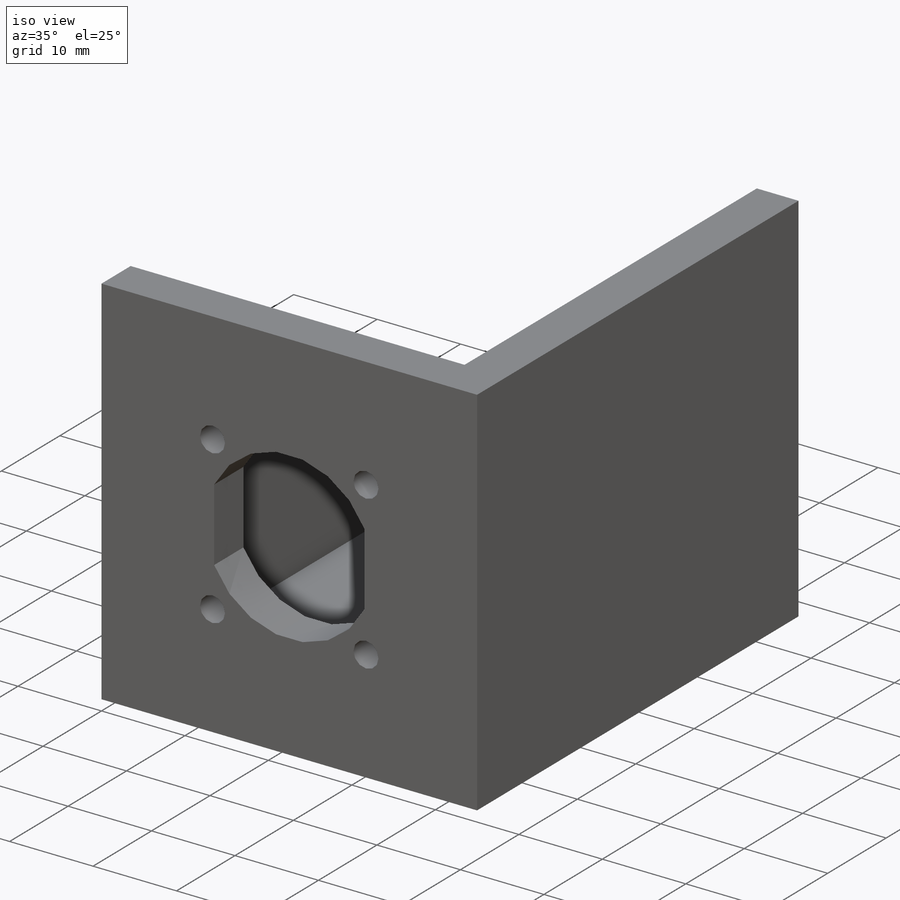
[diagram: iso view]
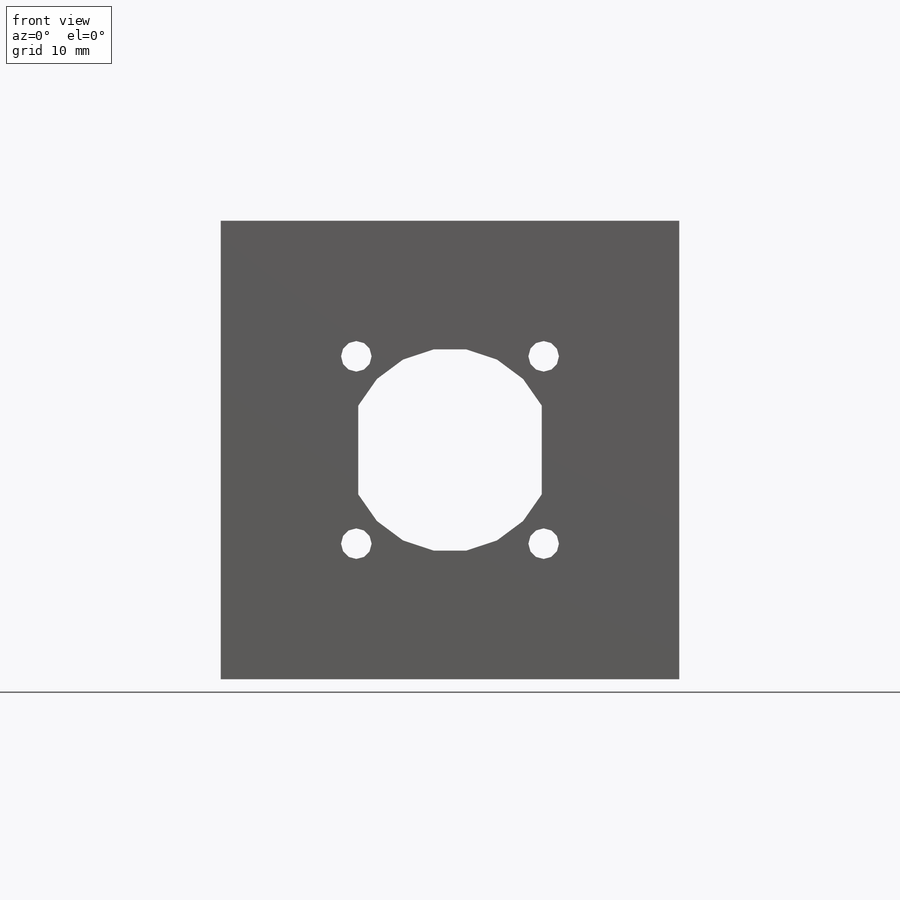
[diagram: front view]
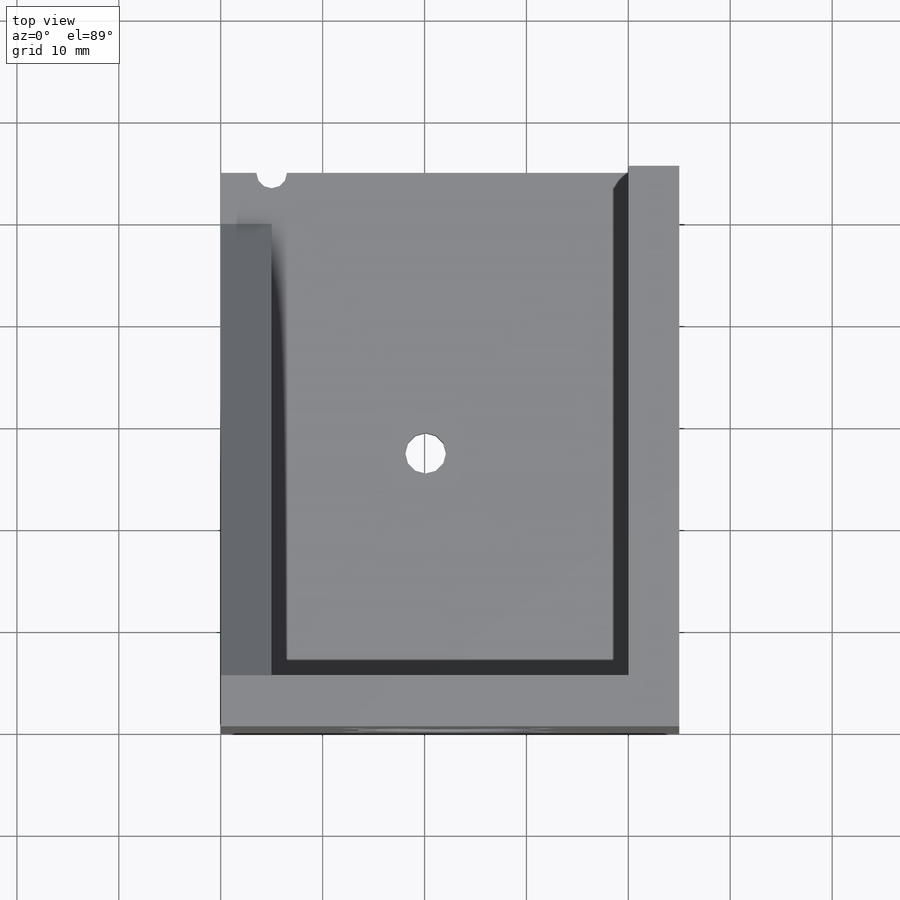
[diagram: top view]
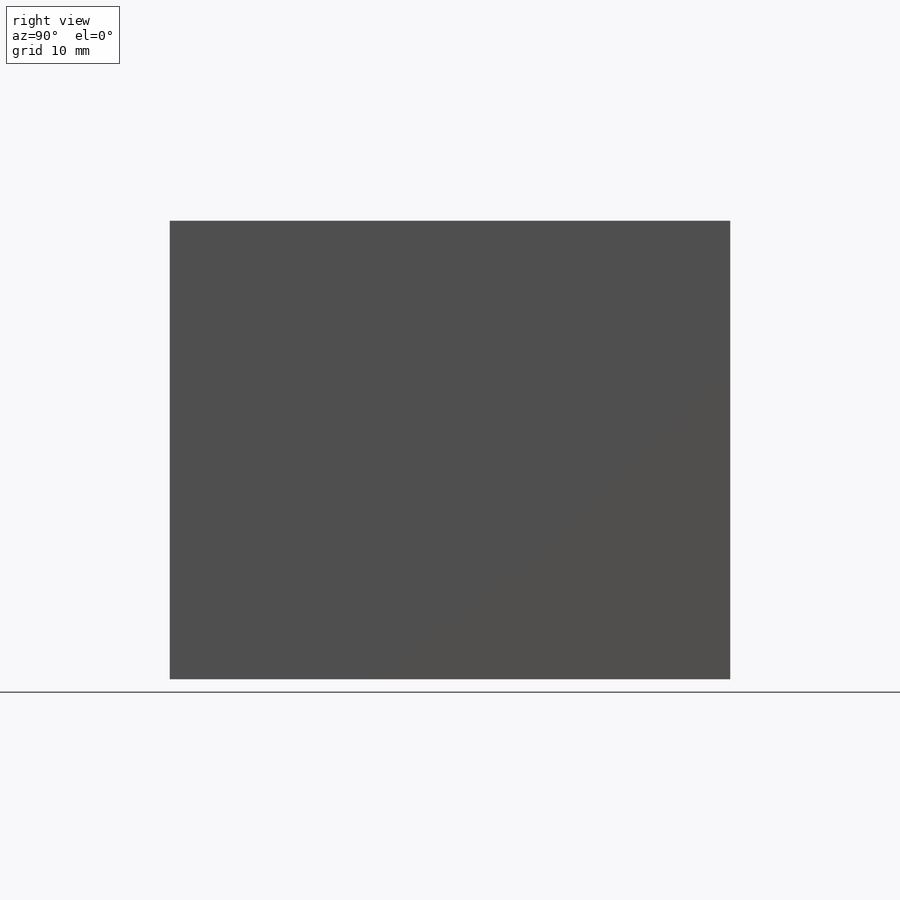
[diagram: right view]
SOLIDWORKS PART (.sldprt)
format: sldprt  version: not decoded by parser v0  size: 461,824 bytes
history: native  units: mm
features: sketch x12, extrude x7, cut_extrude x5, plane x3, material x1 (+10 scaffold rows collapsed)
feature tree (38):
  scaffold x10  (default folders/planes/origin — collapsed)
  material  "Matériau <non spécifié>"
  plane  "Plan de face"
  plane  "Plan de dessus"
  plane  "Plan de droite"
  sketch  "Esquisse1"  dims[D3=20.0mm D5=3.0mm D1=45.0mm D2=45.0mm D4=13.0mm D6=9.0mm]
  extrude  "Extrusion1"  Depth=5mm
  sketch  "Esquisse2"  dims[D1=5.0mm]
  extrude  "Extrusion2"  Depth=95mm
  sketch  "Esquisse3"  dims[D1=45.0mm]
  extrude  "Extrusion3"  Depth=5mm
  sketch  "Esquisse4"
  extrude  "Extrusion4"  Depth=5mm
  sketch  "Esquisse5"  dims[D1=5.0mm]
  extrude  "Extrusion5"  Depth=40mm
  sketch  "Esquisse6"
  extrude  "Extrusion6"  Depth=5mm
  sketch  "Esquisse7"  dims[D1=45.0mm]
  extrude  "Extrusion7"  Depth=5mm
  sketch  "Esquisse8"  dims[D1=20.0mm D2=3.0mm D3=13.0mm D4=9.0mm]
  cut_extrude  "Enlèv. mat.-Extru.1"  [1 undecoded]
  sketch  "Esquisse9"  dims[c1.D1=3.0mm c1.D2=3.0mm c1.D4=3.0mm c1.D6=3.0mm c1.D7=~3.496505mm c1.D9=3.0mm c1.D10=3.0mm c1.D13=3.0mm c1.D16=3.0mm c1.D17=3.0mm c1.D18=3.0mm c1.D3=5.0mm c2.D4=5.0mm c2.D5=5.0mm c2.D6=35.0mm c2.D7=5.0mm c2.D8=5.0mm c2.D11=35.0mm c2.D12=5.0mm c2.D14=5.0mm c2.D15=45.0mm c2.D17=45.0mm c2.D18=5.0mm]
  cut_extrude  "Enlèv. mat.-Extru.2"  [1 undecoded]
  sketch  "Esquisse10"
  cut_extrude  "Enlèv. mat.-Extru.3"  Depth=45mm
  sketch  "Esquisse11"
  cut_extrude  "Enlèv. mat.-Extru.4"  Depth=40mm
  sketch  "Esquisse12"  dims[D1=4.0mm]
  cut_extrude  "Enlèv. mat.-Extru.5"  [1 undecoded]
decode coverage: 17 of 24 modeling features carry decoded parameters
note: ~ marks probable driven/reference dimensions
note: 3 parameter values undecoded
summary: no parameter record found for 3 features
note: suppression state not decoded; provenance and decode notes live in map.json
